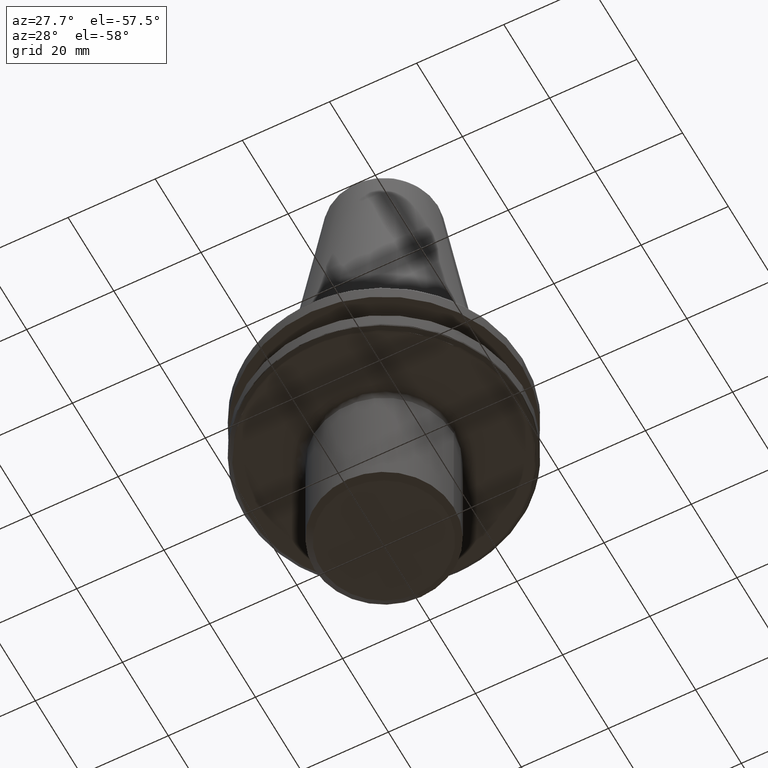
[diagram: clean part render]
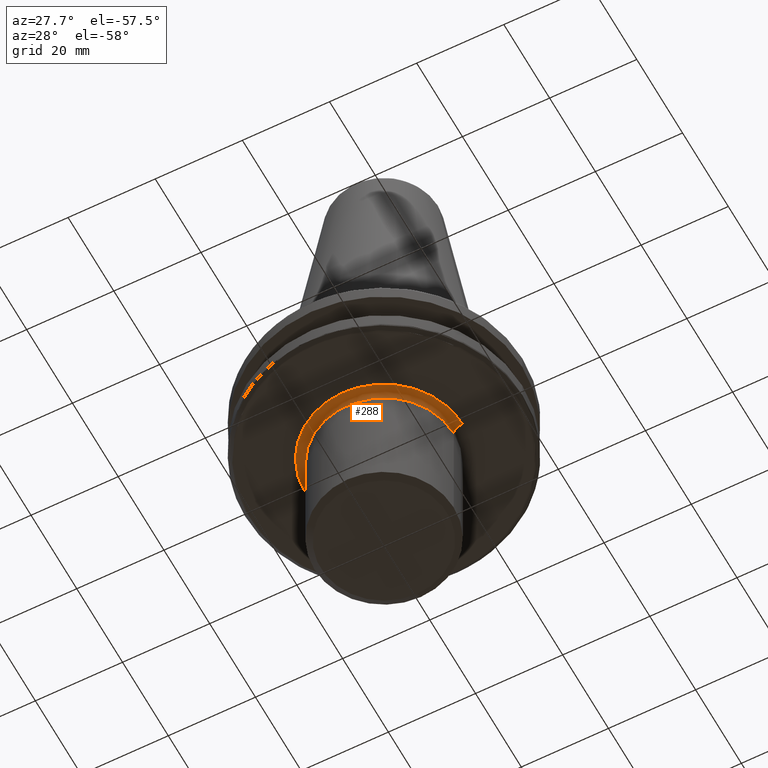
[diagram: same view with one face highlighted and labeled with its STEP entity id]
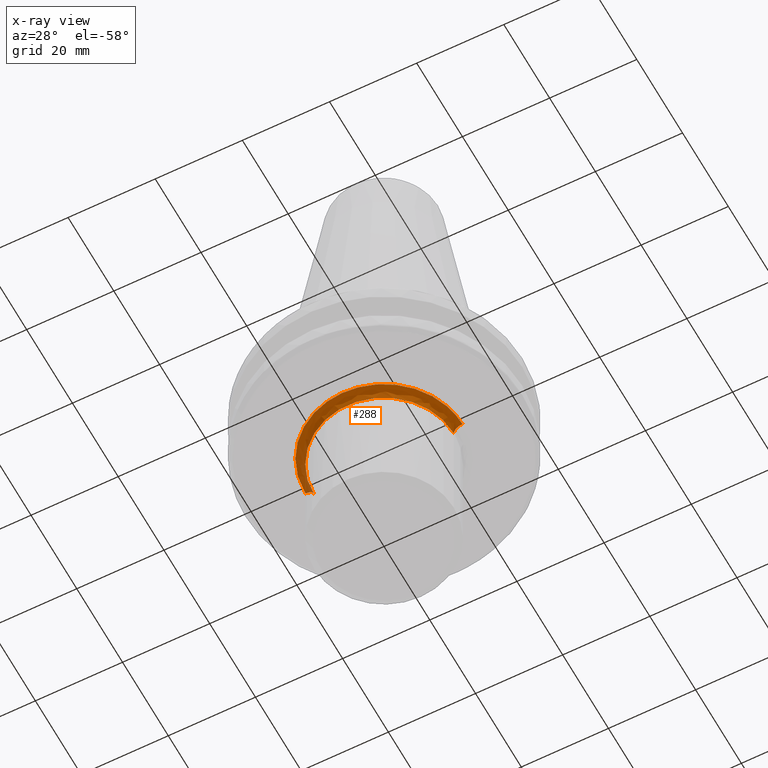
[diagram: x-ray of the same camera — body ghosted, the highlighted face saturated]
A machine part, auxiliary view. The second image highlights one B-rep face of the part: STEP entity #288.
The next image is the same camera in x-ray: the body ghosted, the highlighted face saturated — about 2% of this face is hidden behind the body in this view.
In plain terms, the highlighted face is a freeform B-spline surface patch.
Its self-contained STEP definition (entity closure, byte-faithful):
#6 = CARTESIAN_POINT ( 'NONE',  ( -16.82873354528143000, -6.387744889286875800, -19.10000000000000500 ) ) ;
#29 = CARTESIAN_POINT ( 'NONE',  ( -17.08852354355016700, -5.668794907060630300, -19.10000000000000900 ) ) ;
#44 = CARTESIAN_POINT ( 'NONE',  ( -17.71191978507898300, -3.207653268561720500, -19.10000000000000900 ) ) ;
#59 = CARTESIAN_POINT ( 'NONE',  ( 3.038320727098728900, -17.74195720809653700, -19.10000000000000500 ) ) ;
#69 = CIRCLE ( 'NONE', #1914, 16.00000000000000700 ) ;
#71 = CARTESIAN_POINT ( 'NONE',  ( -10.30050590112741000, -14.76290607181806500, -19.10000000000000900 ) ) ;
#72 = EDGE_CURVE ( 'NONE', #2511, #2980, #69, .T. ) ;
#143 = EDGE_CURVE ( 'NONE', #2952, #1481, #940, .T. ) ;
#162 = CARTESIAN_POINT ( 'NONE',  ( 16.00000000000000700, 0.0000000000000000000, -21.10000000000000900 ) ) ;
#269 = CARTESIAN_POINT ( 'NONE',  ( -18.00000000000000700, 0.0000000000000000000, -19.10000000000000500 ) ) ;
#284 = CARTESIAN_POINT ( 'NONE',  ( -18.00000000000001100, -0.5503953244809810500, -19.10000000000000900 ) ) ;
#288 = ADVANCED_FACE ( 'NONE', ( #1737 ), #349, .F. ) ;
#335 = CARTESIAN_POINT ( 'NONE',  ( -17.96243707893729500, -1.372608685769042700, -19.10000000000000500 ) ) ;
#349 =( BOUNDED_SURFACE ( )  B_SPLINE_SURFACE ( 3, 3, ( 
 ( #2056, #1202, #2988, #3035 ),
 ( #1467, #1371, #2548, #1595 ),
 ( #1940, #2159, #2757, #2076 ),
 ( #2110, #1700, #2311, #839 ) ),
 .UNSPECIFIED., .F., .F., .T. ) 
 B_SPLINE_SURFACE_WITH_KNOTS ( ( 4, 4 ),
 ( 4, 4 ),
 ( 0.0000000000000000000, 1.000000000000000000 ),
 ( 0.0000000000000000000, 1.000000000000000000 ),
 .UNSPECIFIED. ) 
 GEOMETRIC_REPRESENTATION_ITEM ( )  RATIONAL_B_SPLINE_SURFACE ( (
 ( 1.000000000000000000, 0.3333333333333334300, 0.3333333333333334300, 1.000000000000000000),
 ( 0.8047378541243649400, 0.2682459513747884100, 0.2682459513747884100, 0.8047378541243649400),
 ( 0.8047378541243649400, 0.2682459513747884100, 0.2682459513747884100, 0.8047378541243649400),
 ( 1.000000000000000000, 0.3333333333333334300, 0.3333333333333334300, 1.000000000000000000) ) ) 
 REPRESENTATION_ITEM ( '' )  SURFACE ( )  );
#593 = AXIS2_PLACEMENT_3D ( 'NONE', #1084, #1074, #1071 ) ;
#611 = CARTESIAN_POINT ( 'NONE',  ( -17.39327798743179400, -4.698364152018887000, -19.10000000000000500 ) ) ;
#776 = CARTESIAN_POINT ( 'NONE',  ( -12.28872161268494900, -13.16714878855341700, -19.10000000000000500 ) ) ;
#790 = CARTESIAN_POINT ( 'NONE',  ( -16.51236723326484700, -7.191115487861181600, -19.10000000000000500 ) ) ;
#803 = CARTESIAN_POINT ( 'NONE',  ( 16.53425451322224000, -7.117608620009154800, -19.10000000000000900 ) ) ;
#808 = CARTESIAN_POINT ( 'NONE',  ( 16.32042070233831800, -7.603304794230492500, -19.10000000000000500 ) ) ;
#822 = CARTESIAN_POINT ( 'NONE',  ( -11.59955296362709400, -13.78881847652231200, -19.10000000000000500 ) ) ;
#839 = CARTESIAN_POINT ( 'NONE',  ( -16.00000000000000700, -3.918869757271532600E-015, -21.10000000000000900 ) ) ;
#844 = CARTESIAN_POINT ( 'NONE',  ( -9.979504657382607400, -14.98050559699036900, -19.10000000000000500 ) ) ;
#861 = CARTESIAN_POINT ( 'NONE',  ( 9.401086283865806700, -15.35126985339659300, -19.10000000000000900 ) ) ;
#871 = CIRCLE ( 'NONE', #1362, 1.999999999999998200 ) ;
#901 = CARTESIAN_POINT ( 'NONE',  ( -8.556074121656283900, -15.85705636562113200, -19.10000000000000500 ) ) ;
#909 = CARTESIAN_POINT ( 'NONE',  ( -6.083098545760643500, -16.95102028049217000, -19.10000000000000500 ) ) ;
#921 = CARTESIAN_POINT ( 'NONE',  ( -15.14872662005173600, -9.722236411757361200, -19.10000000000000900 ) ) ;
#935 = CARTESIAN_POINT ( 'NONE',  ( 11.84946860695824700, -13.60632295871419800, -19.10000000000001200 ) ) ;
#940 = B_SPLINE_CURVE_WITH_KNOTS ( 'NONE', 3,
 ( #269, #284, #335, #2504, #2520, #1575, #1460, #44, #2885, #1742, #611, #29, #2288, #6, #1111, #2968, #1683, #790, #2937, #2334, #1732, #2828, #921, #2564, #2853, #2874, #776, #822, #2600, #71, #2573, #844, #2072, #2628, #901, #1972, #1941, #2955, #3057, #1437, #1369, #909, #1069, #1841, #2061, #2161, #1830, #1999, #2920, #943, #2297, #2022, #2909, #1034, #2862, #59, #3011, #2641, #2737, #1402, #2280, #2584, #3067, #1608, #2891, #1581, #2206, #2816, #2552, #2305, #861, #1054, #2807, #1697, #2728, #935, #1598, #2241, #2465, #997, #2788, #2406, #1925, #1817, #2201, #808, #803, #1800, #1688, #2105, #2747, #1436, #1990, #2428, #2147, #1913, #2087, #1005, #987, #1095, #1607, #1029 ),
 .UNSPECIFIED., .F., .F.,
 ( 4, 1, 1, 1, 1, 2, 2, 1, 1, 1, 1, 2, 2, 1, 1, 1, 2, 2, 2, 1, 1, 1, 2, 2, 1, 1, 1, 1, 2, 2, 1, 1, 1, 1, 2, 2, 2, 1, 1, 1, 1, 2, 2, 1, 1, 1, 1, 2, 2, 1, 1, 1, 2, 2, 2, 1, 1, 1, 2, 2, 1, 1, 1, 1, 2, 2, 1, 1, 1, 1, 2, 2, 4 ),
 ( 0.0000000000000000000, 0.03124999999999849400, 0.04687499999999775200, 0.05468749999999740500, 0.05859374999999723100, 0.06054687499999715500, 0.06249999999999707200, 0.09374999999999553100, 0.1093749999999947800, 0.1171874999999944400, 0.1210937499999943200, 0.1230468749999942800, 0.1249999999999942500, 0.1562499999999930900, 0.1718749999999924500, 0.1796874999999920900, 0.1835937499999919200, 0.1874999999999917600, 0.2499999999999889000, 0.2812499999999875100, 0.2968749999999867900, 0.3046874999999865100, 0.3085937499999863400, 0.3124999999999862300, 0.3437499999999853500, 0.3593749999999848500, 0.3671874999999845700, 0.3710937499999844600, 0.3730468749999844000, 0.3749999999999843500, 0.4062499999999850100, 0.4218749999999854000, 0.4296874999999855700, 0.4335937499999856800, 0.4355468749999857300, 0.4374999999999857900, 0.4999999999999873400, 0.5312499999999880100, 0.5468749999999884500, 0.5546874999999885600, 0.5585937499999887900, 0.5605468749999887900, 0.5624999999999887900, 0.5937499999999895600, 0.6093749999999901200, 0.6171874999999902300, 0.6210937499999903400, 0.6230468749999904500, 0.6249999999999904500, 0.6562499999999914500, 0.6718749999999920100, 0.6796874999999923400, 0.6835937499999924500, 0.6874999999999926700, 0.7499999999999940000, 0.7812499999999947800, 0.7968749999999951200, 0.8046874999999953400, 0.8085937499999953400, 0.8124999999999953400, 0.8437499999999956700, 0.8593749999999957800, 0.8671874999999958900, 0.8710937499999958900, 0.8730468749999958900, 0.8749999999999958900, 0.9062499999999968900, 0.9218749999999973400, 0.9296874999999976700, 0.9335937499999977800, 0.9355468749999977800, 0.9374999999999977800, 1.000000000000000000 ),
 .UNSPECIFIED. ) ;
#943 = CARTESIAN_POINT ( 'NONE',  ( -2.193099822088672800, -17.89979976210770500, -19.10000000000000500 ) ) ;
#987 = CARTESIAN_POINT ( 'NONE',  ( 17.69323614465455200, -3.309160269654649200, -19.10000000000000100 ) ) ;
#997 = CARTESIAN_POINT ( 'NONE',  ( 14.76290607182131800, -10.30050590112338100, -19.10000000000000500 ) ) ;
#1005 = CARTESIAN_POINT ( 'NONE',  ( 17.68610667369418000, -3.347077070594056500, -19.10000000000000100 ) ) ;
#1029 = CARTESIAN_POINT ( 'NONE',  ( 18.00000000000000700, 2.204364238465235800E-015, -19.10000000000000500 ) ) ;
#1034 = CARTESIAN_POINT ( 'NONE',  ( 2.325828246162259900, -17.85289983977514800, -19.10000000000000500 ) ) ;
#1054 = CARTESIAN_POINT ( 'NONE',  ( 9.594039475454705400, -15.23025537761094700, -19.10000000000000900 ) ) ;
#1069 = CARTESIAN_POINT ( 'NONE',  ( -5.257347647408949800, -17.23255682806530200, -19.10000000000000500 ) ) ;
#1071 = DIRECTION ( 'NONE',  ( -1.000000000000000000, 0.0000000000000000000, 0.0000000000000000000 ) ) ;
#1074 = DIRECTION ( 'NONE',  ( 0.0000000000000000000, 1.000000000000000000, 0.0000000000000000000 ) ) ;
#1084 = CARTESIAN_POINT ( 'NONE',  ( -18.00000000000000700, 0.0000000000000000000, -21.10000000000000900 ) ) ;
#1095 = CARTESIAN_POINT ( 'NONE',  ( 17.89983221049944400, -2.192924503865310000, -19.10000000000000100 ) ) ;
#1111 = CARTESIAN_POINT ( 'NONE',  ( -16.78939039086035800, -6.489818237886693100, -19.10000000000000500 ) ) ;
#1202 = CARTESIAN_POINT ( 'NONE',  ( 18.00000000000000700, -36.00000000000000700, -19.10000000000000900 ) ) ;
#1352 = EDGE_LOOP ( 'NONE', ( #2386, #1953, #1639, #2365 ) ) ;
#1362 = AXIS2_PLACEMENT_3D ( 'NONE', #1938, #1934, #1932 ) ;
#1369 = CARTESIAN_POINT ( 'NONE',  ( -6.659617661260779400, -16.72276249028822500, -19.09999999999999800 ) ) ;
#1371 = CARTESIAN_POINT ( 'NONE',  ( 16.82842712474619900, -33.65685424949239000, -19.10000000000000100 ) ) ;
#1402 = CARTESIAN_POINT ( 'NONE',  ( 3.849182360561259400, -17.59332220720522200, -19.10000000000000900 ) ) ;
#1436 = CARTESIAN_POINT ( 'NONE',  ( 16.95102028049200600, -6.083098545761060000, -19.10000000000000500 ) ) ;
#1437 = CARTESIAN_POINT ( 'NONE',  ( -6.696364729989504400, -16.70808525698477700, -19.10000000000000100 ) ) ;
#1460 = CARTESIAN_POINT ( 'NONE',  ( -17.72404947833881300, -3.139945190381137100, -19.10000000000000900 ) ) ;
#1467 = CARTESIAN_POINT ( 'NONE',  ( 16.82842712474619500, 2.060887941300492200E-015, -19.10000000000000500 ) ) ;
#1481 = VERTEX_POINT ( 'NONE', #2855 ) ;
#1575 = CARTESIAN_POINT ( 'NONE',  ( -17.74195055790776000, -3.038356669786562900, -19.10000000000000100 ) ) ;
#1581 = CARTESIAN_POINT ( 'NONE',  ( 6.557806775836251500, -16.76294921195864200, -19.10000000000000900 ) ) ;
#1595 = CARTESIAN_POINT ( 'NONE',  ( -16.82842712474619500, -4.121775882600985300E-015, -19.10000000000000500 ) ) ;
#1598 = CARTESIAN_POINT ( 'NONE',  ( 13.16714878855766100, -12.28872161267969600, -19.10000000000000500 ) ) ;
#1607 = CARTESIAN_POINT ( 'NONE',  ( 18.00000000000000400, -1.101146189392453700, -19.10000000000000100 ) ) ;
#1608 = CARTESIAN_POINT ( 'NONE',  ( 6.387744889283657000, -16.82873354528301500, -19.10000000000000100 ) ) ;
#1635 = CIRCLE ( 'NONE', #593, 1.999999999999998200 ) ;
#1639 = ORIENTED_EDGE ( 'NONE', *, *, #1935, .T. ) ;
#1679 = EDGE_CURVE ( 'NONE', #1481, #2511, #871, .T. ) ;
#1683 = CARTESIAN_POINT ( 'NONE',  ( -16.75017830573994400, -6.590366602379495100, -19.10000000000000900 ) ) ;
#1688 = CARTESIAN_POINT ( 'NONE',  ( 16.67966237417694900, -6.766858410891115800, -19.10000000000000500 ) ) ;
#1697 = CARTESIAN_POINT ( 'NONE',  ( 9.784787691898026600, -15.10840413434674700, -19.09999999999999800 ) ) ;
#1700 = CARTESIAN_POINT ( 'NONE',  ( 16.00000000000001100, -32.00000000000000700, -21.10000000000000900 ) ) ;
#1732 = CARTESIAN_POINT ( 'NONE',  ( -15.35126985339985600, -9.401086283859069000, -19.10000000000000500 ) ) ;
#1737 = FACE_OUTER_BOUND ( 'NONE', #1352, .T. ) ;
#1742 = CARTESIAN_POINT ( 'NONE',  ( -17.59332220720135700, -3.849182360569116200, -19.10000000000000100 ) ) ;
#1800 = CARTESIAN_POINT ( 'NONE',  ( 16.63670932929579400, -6.872432655270695400, -19.10000000000000900 ) ) ;
#1817 = CARTESIAN_POINT ( 'NONE',  ( 15.39869256567233100, -9.340808366258652700, -19.10000000000000500 ) ) ;
#1830 = CARTESIAN_POINT ( 'NONE',  ( -3.418726685591102500, -17.67239867101132600, -19.10000000000000500 ) ) ;
#1833 = CARTESIAN_POINT ( 'NONE',  ( -16.00000000000000700, 1.959434878635765900E-015, -21.10000000000000900 ) ) ;
#1841 = CARTESIAN_POINT ( 'NONE',  ( -4.273248871393329700, -17.48977408072818600, -19.10000000000000900 ) ) ;
#1913 = CARTESIAN_POINT ( 'NONE',  ( 17.65151862210817400, -3.526108595908626700, -19.10000000000000500 ) ) ;
#1914 = AXIS2_PLACEMENT_3D ( 'NONE', #2309, #2319, #2169 ) ;
#1925 = CARTESIAN_POINT ( 'NONE',  ( 15.02432253146865000, -9.913396460266801200, -19.10000000000000100 ) ) ;
#1932 = DIRECTION ( 'NONE',  ( 1.000000000000000000, 1.224646799147353500E-016, 0.0000000000000000000 ) ) ;
#1934 = DIRECTION ( 'NONE',  ( 1.224646799147353200E-016, -1.000000000000000000, 0.0000000000000000000 ) ) ;
#1935 = EDGE_CURVE ( 'NONE', #2952, #2980, #1635, .T. ) ;
#1938 = CARTESIAN_POINT ( 'NONE',  ( 18.00000000000000700, 2.204364238465236200E-015, -21.10000000000000900 ) ) ;
#1940 = CARTESIAN_POINT ( 'NONE',  ( 16.00000000000000700, 1.959434878635765900E-015, -19.92842712474619700 ) ) ;
#1941 = CARTESIAN_POINT ( 'NONE',  ( -7.117608620011527200, -16.53425451322129200, -19.10000000000000500 ) ) ;
#1953 = ORIENTED_EDGE ( 'NONE', *, *, #143, .F. ) ;
#1972 = CARTESIAN_POINT ( 'NONE',  ( -7.603304794234563100, -16.32042070233671500, -19.10000000000000900 ) ) ;
#1990 = CARTESIAN_POINT ( 'NONE',  ( 17.23255682806501100, -5.257347647409684300, -19.10000000000000900 ) ) ;
#1999 = CARTESIAN_POINT ( 'NONE',  ( -3.347077070594003200, -17.68610667369420900, -19.10000000000000500 ) ) ;
#2022 = CARTESIAN_POINT ( 'NONE',  ( 0.5503076927849354100, -18.00001621379359300, -19.10000000000000500 ) ) ;
#2056 = CARTESIAN_POINT ( 'NONE',  ( 18.00000000000000700, 2.204364238465236200E-015, -19.10000000000000500 ) ) ;
#2061 = CARTESIAN_POINT ( 'NONE',  ( -3.776018801400856400, -17.60057219384986400, -19.10000000000000900 ) ) ;
#2072 = CARTESIAN_POINT ( 'NONE',  ( -9.913396460266417500, -15.02432253146880100, -19.10000000000000500 ) ) ;
#2076 = CARTESIAN_POINT ( 'NONE',  ( -16.00000000000000700, -3.918869757271532600E-015, -19.92842712474619700 ) ) ;
#2087 = CARTESIAN_POINT ( 'NONE',  ( 17.67239867101128300, -3.418726685591205100, -19.10000000000000500 ) ) ;
#2105 = CARTESIAN_POINT ( 'NONE',  ( 16.70808525698492600, -6.696364729989119800, -19.10000000000000100 ) ) ;
#2110 = CARTESIAN_POINT ( 'NONE',  ( 16.00000000000000700, 1.959434878635765900E-015, -21.10000000000000900 ) ) ;
#2147 = CARTESIAN_POINT ( 'NONE',  ( 17.60057219384972900, -3.776018801401173500, -19.10000000000000100 ) ) ;
#2159 = CARTESIAN_POINT ( 'NONE',  ( 16.00000000000001100, -32.00000000000000700, -19.92842712474619700 ) ) ;
#2161 = CARTESIAN_POINT ( 'NONE',  ( -3.526108595908452200, -17.65151862210825200, -19.10000000000000900 ) ) ;
#2169 = DIRECTION ( 'NONE',  ( -1.000000000000000000, 0.0000000000000000000, 0.0000000000000000000 ) ) ;
#2201 = CARTESIAN_POINT ( 'NONE',  ( 15.85705636562328300, -8.556074121650858900, -19.10000000000000900 ) ) ;
#2206 = CARTESIAN_POINT ( 'NONE',  ( 6.590366602378941800, -16.75017830574020600, -19.10000000000000500 ) ) ;
#2241 = CARTESIAN_POINT ( 'NONE',  ( 13.78881847652975300, -11.59955296361791000, -19.10000000000000900 ) ) ;
#2280 = CARTESIAN_POINT ( 'NONE',  ( 4.698364152005153100, -17.39327798743855200, -19.10000000000000500 ) ) ;
#2288 = CARTESIAN_POINT ( 'NONE',  ( -16.91830394140505300, -6.148939950835752700, -19.10000000000000500 ) ) ;
#2297 = CARTESIAN_POINT ( 'NONE',  ( -1.100615385569888800, -17.99996757241283200, -19.10000000000000100 ) ) ;
#2305 = CARTESIAN_POINT ( 'NONE',  ( 8.946257660236385700, -15.62468633968003800, -19.10000000000000500 ) ) ;
#2309 = CARTESIAN_POINT ( 'NONE',  ( 0.0000000000000000000, 0.0000000000000000000, -21.10000000000000900 ) ) ;
#2311 = CARTESIAN_POINT ( 'NONE',  ( -16.00000000000000000, -32.00000000000001400, -21.10000000000000900 ) ) ;
#2319 = DIRECTION ( 'NONE',  ( 0.0000000000000000000, 0.0000000000000000000, -1.000000000000000000 ) ) ;
#2334 = CARTESIAN_POINT ( 'NONE',  ( -15.62468633968564200, -8.946257660224834000, -19.10000000000000500 ) ) ;
#2365 = ORIENTED_EDGE ( 'NONE', *, *, #72, .F. ) ;
#2386 = ORIENTED_EDGE ( 'NONE', *, *, #1679, .F. ) ;
#2406 = CARTESIAN_POINT ( 'NONE',  ( 14.98050559699140600, -9.979504657381332000, -19.09999999999999800 ) ) ;
#2428 = CARTESIAN_POINT ( 'NONE',  ( 17.48977408072797200, -4.273248871393875900, -19.10000000000000100 ) ) ;
#2465 = CARTESIAN_POINT ( 'NONE',  ( 14.44905157421552600, -10.74237891496788300, -19.10000000000000900 ) ) ;
#2504 = CARTESIAN_POINT ( 'NONE',  ( -17.85287855917106400, -2.325943262763313400, -19.10000000000000100 ) ) ;
#2511 = VERTEX_POINT ( 'NONE', #162 ) ;
#2520 = CARTESIAN_POINT ( 'NONE',  ( -17.78166552132302100, -2.801131965133331300, -19.10000000000000500 ) ) ;
#2548 = CARTESIAN_POINT ( 'NONE',  ( -16.82842712474619200, -33.65685424949239000, -19.10000000000000100 ) ) ;
#2552 = CARTESIAN_POINT ( 'NONE',  ( 8.018182373289558700, -16.13571681671469800, -19.10000000000001200 ) ) ;
#2564 = CARTESIAN_POINT ( 'NONE',  ( -15.10840413434597100, -9.784787691898944900, -19.10000000000000500 ) ) ;
#2573 = CARTESIAN_POINT ( 'NONE',  ( -10.10828475458113300, -14.89393041695675100, -19.10000000000000500 ) ) ;
#2584 = CARTESIAN_POINT ( 'NONE',  ( 5.668794907050321200, -17.08852354355523000, -19.10000000000000500 ) ) ;
#2600 = CARTESIAN_POINT ( 'NONE',  ( -10.74237891497477200, -14.44905157420993700, -19.10000000000000500 ) ) ;
#2628 = CARTESIAN_POINT ( 'NONE',  ( -9.340808366261756000, -15.39869256567110900, -19.10000000000000500 ) ) ;
#2641 = CARTESIAN_POINT ( 'NONE',  ( 3.207642485755370000, -17.71192178013560800, -19.10000000000000500 ) ) ;
#2728 = CARTESIAN_POINT ( 'NONE',  ( 10.88958146548508500, -14.38616028335938600, -19.10000000000000500 ) ) ;
#2737 = CARTESIAN_POINT ( 'NONE',  ( 3.239469479847187900, -17.70613253301666400, -19.10000000000000500 ) ) ;
#2747 = CARTESIAN_POINT ( 'NONE',  ( 16.72276249028824000, -6.659617661260753600, -19.10000000000000500 ) ) ;
#2757 = CARTESIAN_POINT ( 'NONE',  ( -16.00000000000000000, -32.00000000000001400, -19.92842712474619700 ) ) ;
#2783 = CARTESIAN_POINT ( 'NONE',  ( -18.00000000000000700, 0.0000000000000000000, -19.10000000000000500 ) ) ;
#2788 = CARTESIAN_POINT ( 'NONE',  ( 14.89393041695871700, -10.10828475457871000, -19.10000000000000500 ) ) ;
#2807 = CARTESIAN_POINT ( 'NONE',  ( 9.722236411759487500, -15.14872662005069500, -19.10000000000000500 ) ) ;
#2816 = CARTESIAN_POINT ( 'NONE',  ( 7.191115487869982600, -16.51236723326058000, -19.10000000000000900 ) ) ;
#2828 = CARTESIAN_POINT ( 'NONE',  ( -15.23025537761291500, -9.594039475450651700, -19.10000000000000900 ) ) ;
#2853 = CARTESIAN_POINT ( 'NONE',  ( -14.38616028337192000, -10.88958146547054900, -19.10000000000000500 ) ) ;
#2855 = CARTESIAN_POINT ( 'NONE',  ( 18.00000000000000700, 2.204364238465235800E-015, -19.10000000000000500 ) ) ;
#2862 = CARTESIAN_POINT ( 'NONE',  ( 2.801064872116053400, -17.78167793500873000, -19.10000000000000500 ) ) ;
#2874 = CARTESIAN_POINT ( 'NONE',  ( -13.60632295870368900, -11.84946860696675100, -19.10000000000000100 ) ) ;
#2885 = CARTESIAN_POINT ( 'NONE',  ( -17.70613253301690900, -3.239469479846699400, -19.10000000000000900 ) ) ;
#2891 = CARTESIAN_POINT ( 'NONE',  ( 6.489818237884807500, -16.78939039086128900, -19.10000000000000100 ) ) ;
#2909 = CARTESIAN_POINT ( 'NONE',  ( 1.372455330300969400, -17.96246545307607400, -19.10000000000000900 ) ) ;
#2920 = CARTESIAN_POINT ( 'NONE',  ( -3.309154790960167500, -17.69323715866680800, -19.10000000000000900 ) ) ;
#2937 = CARTESIAN_POINT ( 'NONE',  ( -16.13571681672217300, -8.018182373274147100, -19.10000000000000500 ) ) ;
#2952 = VERTEX_POINT ( 'NONE', #2783 ) ;
#2955 = CARTESIAN_POINT ( 'NONE',  ( -6.872432655271968100, -16.63670932929529300, -19.10000000000000100 ) ) ;
#2968 = CARTESIAN_POINT ( 'NONE',  ( -16.76294921195816200, -6.557806775837218700, -19.10000000000000500 ) ) ;
#2980 = VERTEX_POINT ( 'NONE', #1833 ) ;
#2988 = CARTESIAN_POINT ( 'NONE',  ( -17.99999999999999600, -36.00000000000001400, -19.10000000000000900 ) ) ;
#3011 = CARTESIAN_POINT ( 'NONE',  ( 3.139924138235406800, -17.72405337344937600, -19.10000000000000500 ) ) ;
#3035 = CARTESIAN_POINT ( 'NONE',  ( -18.00000000000000700, -4.408728476930472400E-015, -19.10000000000000500 ) ) ;
#3057 = CARTESIAN_POINT ( 'NONE',  ( -6.766858410891863700, -16.67966237417665500, -19.10000000000000900 ) ) ;
#3067 = CARTESIAN_POINT ( 'NONE',  ( 6.148939950829741500, -16.91830394140801300, -19.10000000000000500 ) ) ;